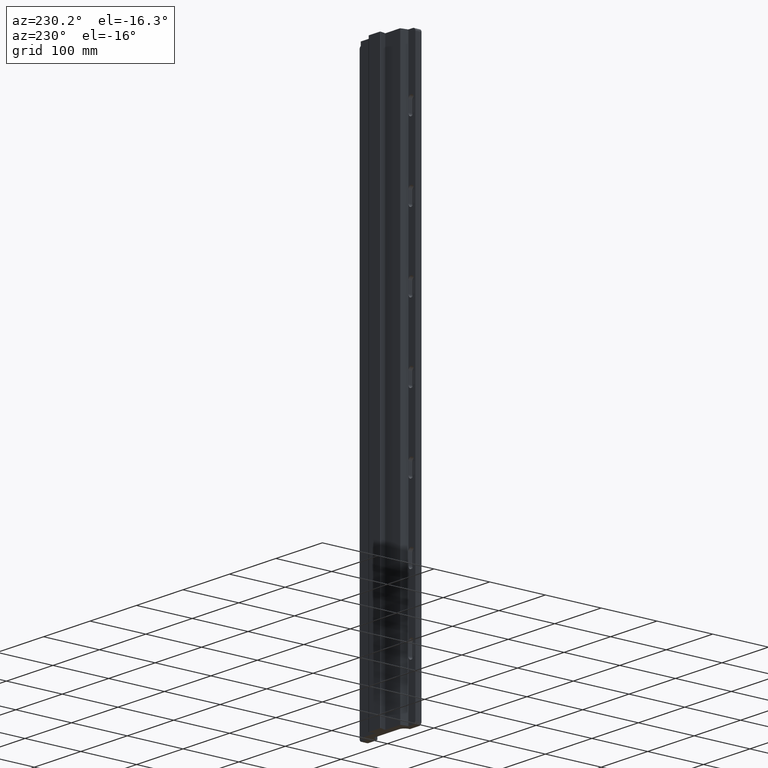
[diagram: clean part render]
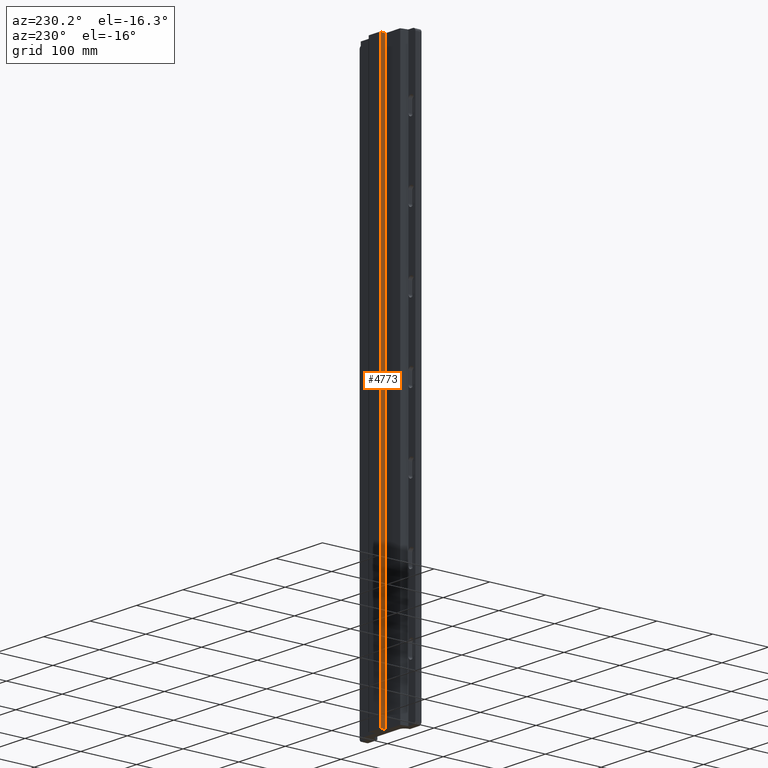
[diagram: same view with one face highlighted and labeled with its STEP entity id]
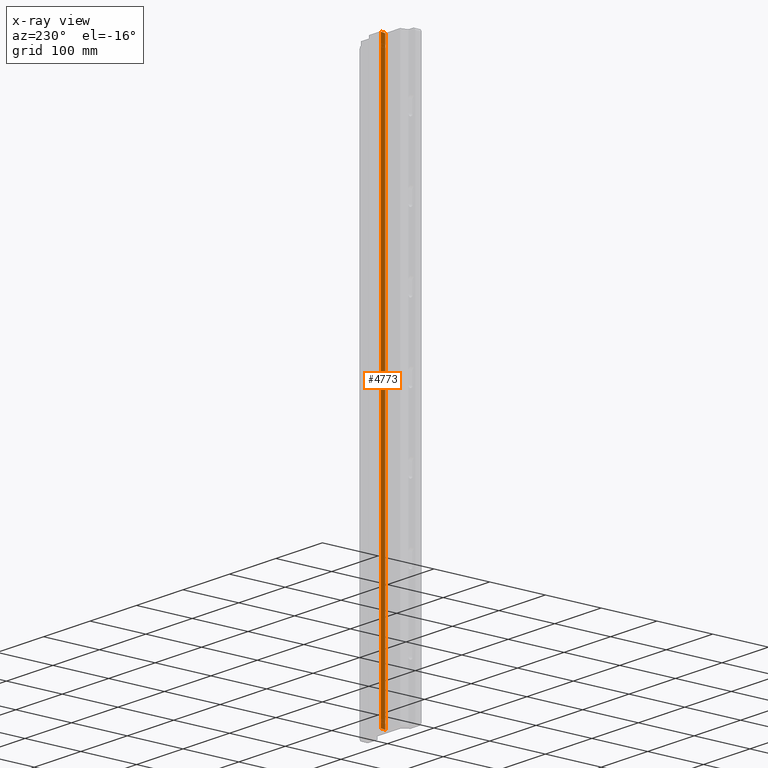
[diagram: x-ray of the same camera — body ghosted, the highlighted face saturated]
A machine part, auxiliary view. The second image highlights one B-rep face of the part: STEP entity #4773.
The next image is the same camera in x-ray: the body ghosted, the highlighted face saturated — about 0% of this face is hidden behind the body in this view.
In plain terms, the highlighted planar face has unit normal (0.9659, 0.2588, -0).
Its self-contained STEP definition (entity closure, byte-faithful):
#62 = CARTESIAN_POINT ( 'NONE',  ( -10.10511776651501300, 12.49999999999954700, 500.0000000000000000 ) ) ;
#87 = CARTESIAN_POINT ( 'NONE',  ( -12.05255888325745400, 19.76794919243108600, 500.0000000000000000 ) ) ;
#94 = DIRECTION ( 'NONE',  ( 0.0000000000000000000, 0.0000000000000000000, -1.000000000000000000 ) ) ;
#131 = EDGE_CURVE ( 'NONE', #6027, #4760, #2068, .T. ) ;
#328 = DIRECTION ( 'NONE',  ( 0.2588190451025183000, -0.9659258262890690900, -0.0000000000000000000 ) ) ;
#550 = CARTESIAN_POINT ( 'NONE',  ( -10.10511776651501300, 12.49999999999954700, 500.0000000000000000 ) ) ;
#690 = CARTESIAN_POINT ( 'NONE',  ( -12.53035396905476300, 21.55110472823338700, -499.9125104206735800 ) ) ;
#697 = VERTEX_POINT ( 'NONE', #4177 ) ;
#771 = LINE ( 'NONE', #1026, #4803 ) ;
#906 = CARTESIAN_POINT ( 'NONE',  ( -10.10511776651501300, 12.49999999999954700, -500.0000000000000000 ) ) ;
#1026 = CARTESIAN_POINT ( 'NONE',  ( -12.71525933670532300, 22.24118095489748700, 500.0000000000000000 ) ) ;
#1105 = CARTESIAN_POINT ( 'NONE',  ( -12.05255888325745400, 19.76794919243108600, -500.0000000000000000 ) ) ;
#1138 = PLANE ( 'NONE',  #4362 ) ;
#1353 = CARTESIAN_POINT ( 'NONE',  ( -10.10511776651501300, 12.49999999999954700, 500.0000000000000000 ) ) ;
#1395 = CARTESIAN_POINT ( 'NONE',  ( -12.71525933670532100, 22.24118095489748400, 499.7488845765536800 ) ) ;
#1496 = DIRECTION ( 'NONE',  ( -0.0000000000000000000, -0.0000000000000000000, -1.000000000000000000 ) ) ;
#1554 = VECTOR ( 'NONE', #3146, 999.9999999999998900 ) ;
#1621 = DIRECTION ( 'NONE',  ( 0.9659258262890690900, 0.2588190451025183000, -0.0000000000000000000 ) ) ;
#1668 = CARTESIAN_POINT ( 'NONE',  ( -12.29946658230698000, 20.68942127006386000, -500.0000000000000000 ) ) ;
#2068 = LINE ( 'NONE', #1353, #2290 ) ;
#2138 = EDGE_CURVE ( 'NONE', #4760, #4008, #5195, .T. ) ;
#2290 = VECTOR ( 'NONE', #328, 999.9999999999998900 ) ;
#2362 = CARTESIAN_POINT ( 'NONE',  ( -10.10511776651501300, 12.49999999999954700, 500.0000000000000000 ) ) ;
#2558 = ORIENTED_EDGE ( 'NONE', *, *, #3511, .T. ) ;
#2628 =( BOUNDED_CURVE ( )  B_SPLINE_CURVE ( 3, ( #6334, #4880, #4921, #1395 ),
 .UNSPECIFIED., .F., .F. ) 
 B_SPLINE_CURVE_WITH_KNOTS ( ( 4, 4 ),
 ( 4.712388980384689700, 5.436807981517753200 ),
 .UNSPECIFIED. ) 
 CURVE ( )  GEOMETRIC_REPRESENTATION_ITEM ( )  RATIONAL_B_SPLINE_CURVE ( ( 1.000000000000000000, 0.9567441264801406200, 0.9567441264801406200, 1.000000000000000000 ) ) 
 REPRESENTATION_ITEM ( '' )  );
#2723 = CARTESIAN_POINT ( 'NONE',  ( -10.10511776651501300, 12.49999999999954700, -500.0000000000000000 ) ) ;
#3129 = VERTEX_POINT ( 'NONE', #4572 ) ;
#3146 = DIRECTION ( 'NONE',  ( 0.2588190451025183000, -0.9659258262890690900, -0.0000000000000000000 ) ) ;
#3366 = EDGE_CURVE ( 'NONE', #3129, #4008, #4809, .T. ) ;
#3511 = EDGE_CURVE ( 'NONE', #6027, #697, #2628, .T. ) ;
#3591 = EDGE_CURVE ( 'NONE', #697, #4873, #771, .T. ) ;
#3689 = FACE_OUTER_BOUND ( 'NONE', #4384, .T. ) ;
#3734 = EDGE_CURVE ( 'NONE', #4873, #3129, #5593, .T. ) ;
#4008 = VERTEX_POINT ( 'NONE', #906 ) ;
#4177 = CARTESIAN_POINT ( 'NONE',  ( -12.71525933670532100, 22.24118095489748400, 499.7488845765536800 ) ) ;
#4188 = VECTOR ( 'NONE', #1496, 1000.000000000000000 ) ;
#4241 = ORIENTED_EDGE ( 'NONE', *, *, #131, .F. ) ;
#4362 = AXIS2_PLACEMENT_3D ( 'NONE', #62, #1621, #5013 ) ;
#4384 = EDGE_LOOP ( 'NONE', ( #2558, #6185, #4389, #6291, #6024, #4241 ) ) ;
#4389 = ORIENTED_EDGE ( 'NONE', *, *, #3734, .T. ) ;
#4572 = CARTESIAN_POINT ( 'NONE',  ( -12.05255888325745400, 19.76794919243108600, -500.0000000000000000 ) ) ;
#4760 = VERTEX_POINT ( 'NONE', #2362 ) ;
#4773 = ADVANCED_FACE ( 'NONE', ( #3689 ), #1138, .F. ) ;
#4803 = VECTOR ( 'NONE', #94, 1000.000000000000000 ) ;
#4809 = LINE ( 'NONE', #2723, #1554 ) ;
#4873 = VERTEX_POINT ( 'NONE', #5238 ) ;
#4880 = CARTESIAN_POINT ( 'NONE',  ( -12.29946658230698000, 20.68942127006386000, 499.9999999999999400 ) ) ;
#4921 = CARTESIAN_POINT ( 'NONE',  ( -12.53035396905476000, 21.55110472823338300, 499.9125104206735300 ) ) ;
#5013 = DIRECTION ( 'NONE',  ( -0.2588190451025183000, 0.9659258262890690900, 0.0000000000000000000 ) ) ;
#5096 = CARTESIAN_POINT ( 'NONE',  ( -12.71525933670532100, 22.24118095489748400, -499.7488845765536800 ) ) ;
#5195 = LINE ( 'NONE', #550, #4188 ) ;
#5238 = CARTESIAN_POINT ( 'NONE',  ( -12.71525933670532100, 22.24118095489748400, -499.7488845765536800 ) ) ;
#5593 =( BOUNDED_CURVE ( )  B_SPLINE_CURVE ( 3, ( #5096, #690, #1668, #1105 ),
 .UNSPECIFIED., .F., .T. ) 
 B_SPLINE_CURVE_WITH_KNOTS ( ( 4, 4 ),
 ( 0.8463773256618331000, 1.570796326794896600 ),
 .UNSPECIFIED. ) 
 CURVE ( )  GEOMETRIC_REPRESENTATION_ITEM ( )  RATIONAL_B_SPLINE_CURVE ( ( 1.000000000000000000, 0.9567441264801407300, 0.9567441264801407300, 1.000000000000000000 ) ) 
 REPRESENTATION_ITEM ( '' )  );
#6024 = ORIENTED_EDGE ( 'NONE', *, *, #2138, .F. ) ;
#6027 = VERTEX_POINT ( 'NONE', #87 ) ;
#6185 = ORIENTED_EDGE ( 'NONE', *, *, #3591, .T. ) ;
#6291 = ORIENTED_EDGE ( 'NONE', *, *, #3366, .T. ) ;
#6334 = CARTESIAN_POINT ( 'NONE',  ( -12.05255888325745400, 19.76794919243108600, 500.0000000000000000 ) ) ;